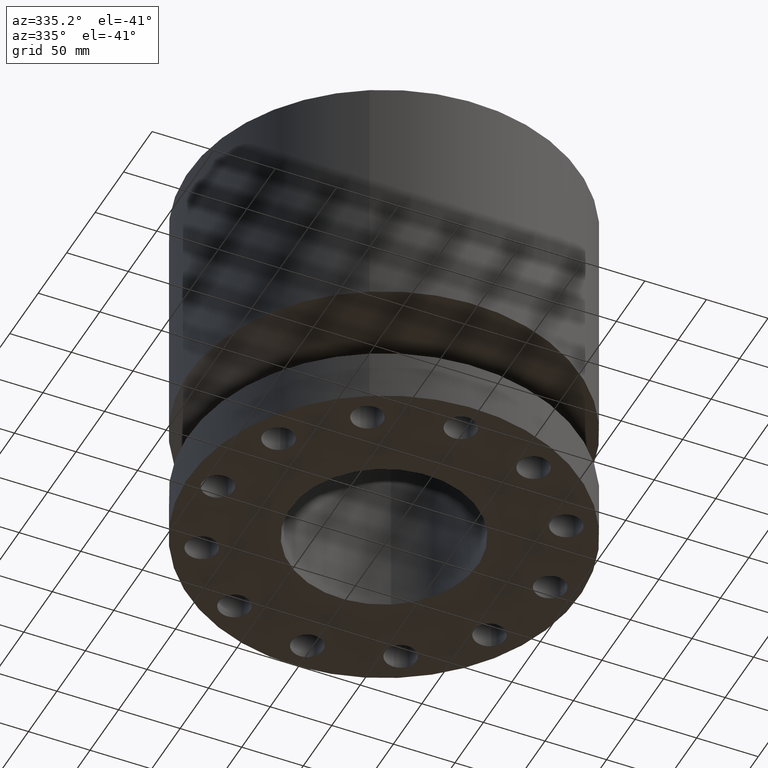
[diagram: clean part render]
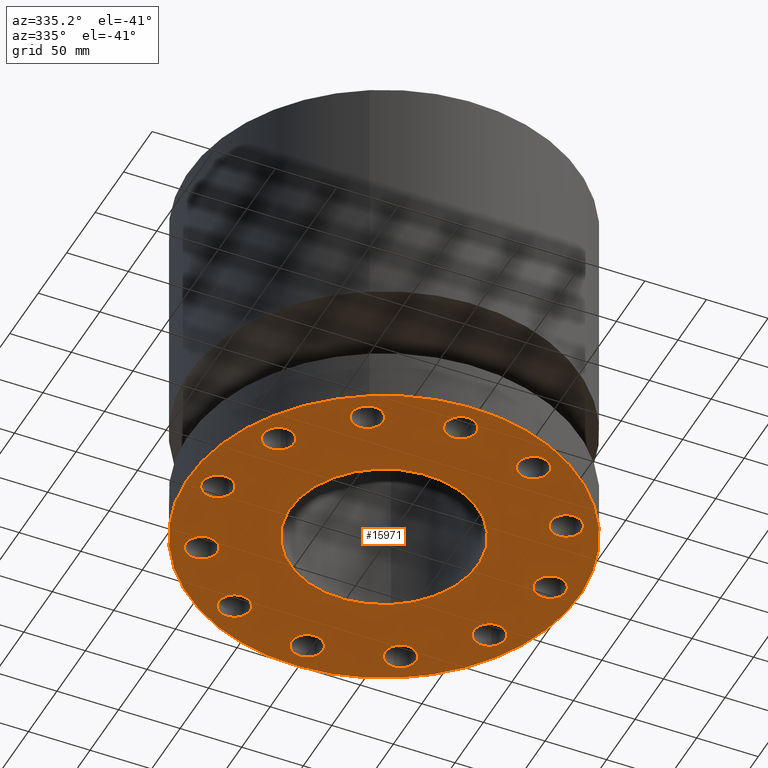
[diagram: same view with one face highlighted and labeled with its STEP entity id]
A machine part, auxiliary view. The second image highlights one B-rep face of the part: STEP entity #15971.
In plain terms, the highlighted planar face has unit normal (0, 0, 1).
Its self-contained STEP definition (entity closure, byte-faithful):
#51=AXIS2_PLACEMENT_3D('Circle Axis2P3D',#49,#50,$) ;
#344=AXIS2_PLACEMENT_3D('Circle Axis2P3D',#342,#343,$) ;
#361=AXIS2_PLACEMENT_3D('Circle Axis2P3D',#359,#360,$) ;
#387=AXIS2_PLACEMENT_3D('Circle Axis2P3D',#385,#386,$) ;
#454=AXIS2_PLACEMENT_3D('Circle Axis2P3D',#452,#453,$) ;
#473=AXIS2_PLACEMENT_3D('Circle Axis2P3D',#471,#472,$) ;
#497=AXIS2_PLACEMENT_3D('Circle Axis2P3D',#495,#496,$) ;
#516=AXIS2_PLACEMENT_3D('Circle Axis2P3D',#514,#515,$) ;
#540=AXIS2_PLACEMENT_3D('Circle Axis2P3D',#538,#539,$) ;
#559=AXIS2_PLACEMENT_3D('Circle Axis2P3D',#557,#558,$) ;
#583=AXIS2_PLACEMENT_3D('Circle Axis2P3D',#581,#582,$) ;
#602=AXIS2_PLACEMENT_3D('Circle Axis2P3D',#600,#601,$) ;
#626=AXIS2_PLACEMENT_3D('Circle Axis2P3D',#624,#625,$) ;
#645=AXIS2_PLACEMENT_3D('Circle Axis2P3D',#643,#644,$) ;
#669=AXIS2_PLACEMENT_3D('Circle Axis2P3D',#667,#668,$) ;
#688=AXIS2_PLACEMENT_3D('Circle Axis2P3D',#686,#687,$) ;
#712=AXIS2_PLACEMENT_3D('Circle Axis2P3D',#710,#711,$) ;
#731=AXIS2_PLACEMENT_3D('Circle Axis2P3D',#729,#730,$) ;
#755=AXIS2_PLACEMENT_3D('Circle Axis2P3D',#753,#754,$) ;
#774=AXIS2_PLACEMENT_3D('Circle Axis2P3D',#772,#773,$) ;
#798=AXIS2_PLACEMENT_3D('Circle Axis2P3D',#796,#797,$) ;
#817=AXIS2_PLACEMENT_3D('Circle Axis2P3D',#815,#816,$) ;
#841=AXIS2_PLACEMENT_3D('Circle Axis2P3D',#839,#840,$) ;
#860=AXIS2_PLACEMENT_3D('Circle Axis2P3D',#858,#859,$) ;
#884=AXIS2_PLACEMENT_3D('Circle Axis2P3D',#882,#883,$) ;
#903=AXIS2_PLACEMENT_3D('Circle Axis2P3D',#901,#902,$) ;
#15874=AXIS2_PLACEMENT_3D('Circle Axis2P3D',#15872,#15873,$) ;
#15900=AXIS2_PLACEMENT_3D('Circle Axis2P3D',#15898,#15899,$) ;
#15913=AXIS2_PLACEMENT_3D('Plane Axis2P3D',#15910,#15911,#15912) ;
#46=CARTESIAN_POINT('Vertex',(5.74879128097,0.239712769303,2.2401153548E-016)) ;
#49=CARTESIAN_POINT('Axis2P3D Location',(5.31000000002,0.,0.)) ;
#53=CARTESIAN_POINT('Vertex',(4.87120871907,-0.239712769303,2.2401153548E-016)) ;
#342=CARTESIAN_POINT('Axis2P3D Location',(5.31000000002,0.,0.)) ;
#359=CARTESIAN_POINT('Axis2P3D Location',(0.,0.,1.1189649382E-015)) ;
#363=CARTESIAN_POINT('Vertex',(-2.99640961629,-5.48489101184,1.1189649382E-015)) ;
#365=CARTESIAN_POINT('Vertex',(2.99640961629,5.48489101184,1.1189649382E-015)) ;
#385=CARTESIAN_POINT('Axis2P3D Location',(0.,0.,1.1189649382E-015)) ;
#449=CARTESIAN_POINT('Vertex',(5.09845567502,-2.66679829266,2.2401153548E-016)) ;
#452=CARTESIAN_POINT('Axis2P3D Location',(4.59859489411,-2.65500000001,0.)) ;
#456=CARTESIAN_POINT('Vertex',(4.0987341132,-2.64320170737,2.2401153548E-016)) ;
#471=CARTESIAN_POINT('Axis2P3D Location',(4.59859489411,-2.65500000001,0.)) ;
#492=CARTESIAN_POINT('Vertex',(3.08199298831,-4.85874290572,2.2401153548E-016)) ;
#495=CARTESIAN_POINT('Axis2P3D Location',(2.65500000001,-4.59859489411,0.)) ;
#499=CARTESIAN_POINT('Vertex',(2.22800701171,-4.33844688251,2.2401153548E-016)) ;
#514=CARTESIAN_POINT('Axis2P3D Location',(2.65500000001,-4.59859489411,0.)) ;
#535=CARTESIAN_POINT('Vertex',(0.239712769303,-5.74879128097,2.2401153548E-016)) ;
#538=CARTESIAN_POINT('Axis2P3D Location',(-7.9382121303E-016,-5.31000000002,0.)) ;
#542=CARTESIAN_POINT('Vertex',(-0.239712769303,-4.87120871907,2.2401153548E-016)) ;
#557=CARTESIAN_POINT('Axis2P3D Location',(-7.9382121303E-016,-5.31000000002,0.)) ;
#578=CARTESIAN_POINT('Vertex',(-2.66679829266,-5.09845567502,2.22372426684E-016)) ;
#581=CARTESIAN_POINT('Axis2P3D Location',(-2.65500000001,-4.59859489411,-3.2782175924E-018)) ;
#585=CARTESIAN_POINT('Vertex',(-2.64320170737,-4.0987341132,2.22372426684E-016)) ;
#600=CARTESIAN_POINT('Axis2P3D Location',(-2.65500000001,-4.59859489411,-3.2782175924E-018)) ;
#621=CARTESIAN_POINT('Vertex',(-4.85874290572,-3.08199298831,2.2401153548E-016)) ;
#624=CARTESIAN_POINT('Axis2P3D Location',(-4.59859489411,-2.65500000001,0.)) ;
#628=CARTESIAN_POINT('Vertex',(-4.33844688251,-2.22800701171,2.2401153548E-016)) ;
#643=CARTESIAN_POINT('Axis2P3D Location',(-4.59859489411,-2.65500000001,0.)) ;
#664=CARTESIAN_POINT('Vertex',(-5.74879128097,-0.239712769303,2.2401153548E-016)) ;
#667=CARTESIAN_POINT('Axis2P3D Location',(-5.31000000002,-6.5028745035E-016,0.)) ;
#671=CARTESIAN_POINT('Vertex',(-4.87120871907,0.239712769303,2.2401153548E-016)) ;
#686=CARTESIAN_POINT('Axis2P3D Location',(-5.31000000002,-6.5028745035E-016,0.)) ;
#707=CARTESIAN_POINT('Vertex',(-5.09845567502,2.66679829266,2.2401153548E-016)) ;
#710=CARTESIAN_POINT('Axis2P3D Location',(-4.59859489411,2.65500000001,0.)) ;
#714=CARTESIAN_POINT('Vertex',(-4.0987341132,2.64320170737,2.2401153548E-016)) ;
#729=CARTESIAN_POINT('Axis2P3D Location',(-4.59859489411,2.65500000001,0.)) ;
#750=CARTESIAN_POINT('Vertex',(-3.08199298831,4.85874290572,2.2401153548E-016)) ;
#753=CARTESIAN_POINT('Axis2P3D Location',(-2.65500000001,4.59859489411,0.)) ;
#757=CARTESIAN_POINT('Vertex',(-2.22800701171,4.33844688251,2.2401153548E-016)) ;
#772=CARTESIAN_POINT('Axis2P3D Location',(-2.65500000001,4.59859489411,0.)) ;
#793=CARTESIAN_POINT('Vertex',(-0.239712769303,5.74879128097,2.2401153548E-016)) ;
#796=CARTESIAN_POINT('Axis2P3D Location',(-9.75431175525E-016,5.31000000002,0.)) ;
#800=CARTESIAN_POINT('Vertex',(0.239712769303,4.87120871907,2.2401153548E-016)) ;
#815=CARTESIAN_POINT('Axis2P3D Location',(-9.75431175525E-016,5.31000000002,0.)) ;
#836=CARTESIAN_POINT('Vertex',(2.66679829266,5.09845567502,2.2401153548E-016)) ;
#839=CARTESIAN_POINT('Axis2P3D Location',(2.65500000001,4.59859489411,0.)) ;
#843=CARTESIAN_POINT('Vertex',(2.64320170737,4.0987341132,2.2401153548E-016)) ;
#858=CARTESIAN_POINT('Axis2P3D Location',(2.65500000001,4.59859489411,0.)) ;
#879=CARTESIAN_POINT('Vertex',(4.85874290572,3.08199298831,2.2401153548E-016)) ;
#882=CARTESIAN_POINT('Axis2P3D Location',(4.59859489411,2.65500000001,0.)) ;
#886=CARTESIAN_POINT('Vertex',(4.33844688251,2.22800701171,2.2401153548E-016)) ;
#901=CARTESIAN_POINT('Axis2P3D Location',(4.59859489411,2.65500000001,0.)) ;
#15872=CARTESIAN_POINT('Axis2P3D Location',(0.,0.,0.)) ;
#15876=CARTESIAN_POINT('Vertex',(-1.43827661582,-2.63274768568,0.)) ;
#15878=CARTESIAN_POINT('Vertex',(1.43827661582,2.63274768568,0.)) ;
#15898=CARTESIAN_POINT('Axis2P3D Location',(0.,0.,0.)) ;
#15910=CARTESIAN_POINT('Axis2P3D Location',(0.,0.,0.)) ;
#50=DIRECTION('Axis2P3D Direction',(0.,-0.,0.0393700787402)) ;
#343=DIRECTION('Axis2P3D Direction',(0.,-0.,0.0393700787402)) ;
#360=DIRECTION('Axis2P3D Direction',(0.,0.,-0.0393700787402)) ;
#386=DIRECTION('Axis2P3D Direction',(0.,0.,-0.0393700787402)) ;
#453=DIRECTION('Axis2P3D Direction',(-0.,0.,0.0393700787402)) ;
#472=DIRECTION('Axis2P3D Direction',(-0.,0.,0.0393700787402)) ;
#496=DIRECTION('Axis2P3D Direction',(-0.,0.,0.0393700787402)) ;
#515=DIRECTION('Axis2P3D Direction',(-0.,0.,0.0393700787402)) ;
#539=DIRECTION('Axis2P3D Direction',(-0.,0.,0.0393700787402)) ;
#558=DIRECTION('Axis2P3D Direction',(-0.,0.,0.0393700787402)) ;
#582=DIRECTION('Axis2P3D Direction',(0.,0.,0.0393700787402)) ;
#601=DIRECTION('Axis2P3D Direction',(0.,0.,0.0393700787402)) ;
#625=DIRECTION('Axis2P3D Direction',(0.,0.,0.0393700787402)) ;
#644=DIRECTION('Axis2P3D Direction',(0.,0.,0.0393700787402)) ;
#668=DIRECTION('Axis2P3D Direction',(0.,0.,0.0393700787402)) ;
#687=DIRECTION('Axis2P3D Direction',(0.,0.,0.0393700787402)) ;
#711=DIRECTION('Axis2P3D Direction',(0.,0.,0.0393700787402)) ;
#730=DIRECTION('Axis2P3D Direction',(0.,0.,0.0393700787402)) ;
#754=DIRECTION('Axis2P3D Direction',(0.,0.,0.0393700787402)) ;
#773=DIRECTION('Axis2P3D Direction',(0.,0.,0.0393700787402)) ;
#797=DIRECTION('Axis2P3D Direction',(0.,0.,0.0393700787402)) ;
#816=DIRECTION('Axis2P3D Direction',(0.,0.,0.0393700787402)) ;
#840=DIRECTION('Axis2P3D Direction',(0.,-0.,0.0393700787402)) ;
#859=DIRECTION('Axis2P3D Direction',(0.,-0.,0.0393700787402)) ;
#883=DIRECTION('Axis2P3D Direction',(0.,-0.,0.0393700787402)) ;
#902=DIRECTION('Axis2P3D Direction',(0.,-0.,0.0393700787402)) ;
#15873=DIRECTION('Axis2P3D Direction',(0.,0.,-0.0393700787402)) ;
#15899=DIRECTION('Axis2P3D Direction',(0.,0.,-0.0393700787402)) ;
#15911=DIRECTION('Axis2P3D Direction',(0.,0.,0.0393700787402)) ;
#15912=DIRECTION('Axis2P3D XDirection',(0.0393700787402,0.,0.)) ;
#15916=ORIENTED_EDGE('',*,*,#389,.T.) ;
#15917=ORIENTED_EDGE('',*,*,#367,.T.) ;
#15920=ORIENTED_EDGE('',*,*,#888,.F.) ;
#15921=ORIENTED_EDGE('',*,*,#905,.F.) ;
#15924=ORIENTED_EDGE('',*,*,#845,.F.) ;
#15925=ORIENTED_EDGE('',*,*,#862,.F.) ;
#15928=ORIENTED_EDGE('',*,*,#802,.F.) ;
#15929=ORIENTED_EDGE('',*,*,#819,.F.) ;
#15932=ORIENTED_EDGE('',*,*,#759,.F.) ;
#15933=ORIENTED_EDGE('',*,*,#776,.F.) ;
#15936=ORIENTED_EDGE('',*,*,#716,.F.) ;
#15937=ORIENTED_EDGE('',*,*,#733,.F.) ;
#15940=ORIENTED_EDGE('',*,*,#673,.F.) ;
#15941=ORIENTED_EDGE('',*,*,#690,.F.) ;
#15944=ORIENTED_EDGE('',*,*,#630,.F.) ;
#15945=ORIENTED_EDGE('',*,*,#647,.F.) ;
#15948=ORIENTED_EDGE('',*,*,#587,.F.) ;
#15949=ORIENTED_EDGE('',*,*,#604,.F.) ;
#15952=ORIENTED_EDGE('',*,*,#544,.F.) ;
#15953=ORIENTED_EDGE('',*,*,#561,.F.) ;
#15956=ORIENTED_EDGE('',*,*,#501,.F.) ;
#15957=ORIENTED_EDGE('',*,*,#518,.F.) ;
#15960=ORIENTED_EDGE('',*,*,#458,.F.) ;
#15961=ORIENTED_EDGE('',*,*,#475,.F.) ;
#15964=ORIENTED_EDGE('',*,*,#346,.F.) ;
#15965=ORIENTED_EDGE('',*,*,#55,.F.) ;
#15968=ORIENTED_EDGE('',*,*,#15902,.T.) ;
#15969=ORIENTED_EDGE('',*,*,#15880,.T.) ;
#15922=FACE_BOUND('',#15919,.T.) ;
#15926=FACE_BOUND('',#15923,.T.) ;
#15930=FACE_BOUND('',#15927,.T.) ;
#15934=FACE_BOUND('',#15931,.T.) ;
#15938=FACE_BOUND('',#15935,.T.) ;
#15942=FACE_BOUND('',#15939,.T.) ;
#15946=FACE_BOUND('',#15943,.T.) ;
#15950=FACE_BOUND('',#15947,.T.) ;
#15954=FACE_BOUND('',#15951,.T.) ;
#15958=FACE_BOUND('',#15955,.T.) ;
#15962=FACE_BOUND('',#15959,.T.) ;
#15966=FACE_BOUND('',#15963,.T.) ;
#15970=FACE_BOUND('',#15967,.T.) ;
#15971=ADVANCED_FACE('PartBody',(#15918,#15922,#15926,#15930,#15934,#15938,#15942,#15946,#15950,#15954,#15958,#15962,#15966,#15970),#15914,.F.) ;
#52=CIRCLE('generated circle',#51,0.500000000002) ;
#345=CIRCLE('generated circle',#344,0.500000000002) ;
#362=CIRCLE('generated circle',#361,6.25000000003) ;
#388=CIRCLE('generated circle',#387,6.25000000003) ;
#455=CIRCLE('generated circle',#454,0.500000000002) ;
#474=CIRCLE('generated circle',#473,0.500000000002) ;
#498=CIRCLE('generated circle',#497,0.500000000002) ;
#517=CIRCLE('generated circle',#516,0.500000000002) ;
#541=CIRCLE('generated circle',#540,0.500000000002) ;
#560=CIRCLE('generated circle',#559,0.500000000002) ;
#584=CIRCLE('generated circle',#583,0.500000000002) ;
#603=CIRCLE('generated circle',#602,0.500000000002) ;
#627=CIRCLE('generated circle',#626,0.500000000002) ;
#646=CIRCLE('generated circle',#645,0.500000000002) ;
#670=CIRCLE('generated circle',#669,0.500000000002) ;
#689=CIRCLE('generated circle',#688,0.500000000002) ;
#713=CIRCLE('generated circle',#712,0.500000000002) ;
#732=CIRCLE('generated circle',#731,0.500000000002) ;
#756=CIRCLE('generated circle',#755,0.500000000002) ;
#775=CIRCLE('generated circle',#774,0.500000000002) ;
#799=CIRCLE('generated circle',#798,0.500000000002) ;
#818=CIRCLE('generated circle',#817,0.500000000002) ;
#842=CIRCLE('generated circle',#841,0.500000000002) ;
#861=CIRCLE('generated circle',#860,0.500000000002) ;
#885=CIRCLE('generated circle',#884,0.500000000002) ;
#904=CIRCLE('generated circle',#903,0.500000000002) ;
#15875=CIRCLE('generated circle',#15874,3.00000000001) ;
#15901=CIRCLE('generated circle',#15900,3.00000000001) ;
#55=EDGE_CURVE('',#47,#54,#52,.F.) ;
#346=EDGE_CURVE('',#54,#47,#345,.F.) ;
#367=EDGE_CURVE('',#364,#366,#362,.T.) ;
#389=EDGE_CURVE('',#366,#364,#388,.T.) ;
#458=EDGE_CURVE('',#450,#457,#455,.F.) ;
#475=EDGE_CURVE('',#457,#450,#474,.F.) ;
#501=EDGE_CURVE('',#493,#500,#498,.F.) ;
#518=EDGE_CURVE('',#500,#493,#517,.F.) ;
#544=EDGE_CURVE('',#536,#543,#541,.F.) ;
#561=EDGE_CURVE('',#543,#536,#560,.F.) ;
#587=EDGE_CURVE('',#579,#586,#584,.F.) ;
#604=EDGE_CURVE('',#586,#579,#603,.F.) ;
#630=EDGE_CURVE('',#622,#629,#627,.F.) ;
#647=EDGE_CURVE('',#629,#622,#646,.F.) ;
#673=EDGE_CURVE('',#665,#672,#670,.F.) ;
#690=EDGE_CURVE('',#672,#665,#689,.F.) ;
#716=EDGE_CURVE('',#708,#715,#713,.F.) ;
#733=EDGE_CURVE('',#715,#708,#732,.F.) ;
#759=EDGE_CURVE('',#751,#758,#756,.F.) ;
#776=EDGE_CURVE('',#758,#751,#775,.F.) ;
#802=EDGE_CURVE('',#794,#801,#799,.F.) ;
#819=EDGE_CURVE('',#801,#794,#818,.F.) ;
#845=EDGE_CURVE('',#837,#844,#842,.F.) ;
#862=EDGE_CURVE('',#844,#837,#861,.F.) ;
#888=EDGE_CURVE('',#880,#887,#885,.F.) ;
#905=EDGE_CURVE('',#887,#880,#904,.F.) ;
#15880=EDGE_CURVE('',#15877,#15879,#15875,.F.) ;
#15902=EDGE_CURVE('',#15879,#15877,#15901,.F.) ;
#15915=EDGE_LOOP('',(#15916,#15917)) ;
#15919=EDGE_LOOP('',(#15920,#15921)) ;
#15923=EDGE_LOOP('',(#15924,#15925)) ;
#15927=EDGE_LOOP('',(#15928,#15929)) ;
#15931=EDGE_LOOP('',(#15932,#15933)) ;
#15935=EDGE_LOOP('',(#15936,#15937)) ;
#15939=EDGE_LOOP('',(#15940,#15941)) ;
#15943=EDGE_LOOP('',(#15944,#15945)) ;
#15947=EDGE_LOOP('',(#15948,#15949)) ;
#15951=EDGE_LOOP('',(#15952,#15953)) ;
#15955=EDGE_LOOP('',(#15956,#15957)) ;
#15959=EDGE_LOOP('',(#15960,#15961)) ;
#15963=EDGE_LOOP('',(#15964,#15965)) ;
#15967=EDGE_LOOP('',(#15968,#15969)) ;
#15918=FACE_OUTER_BOUND('',#15915,.T.) ;
#15914=PLANE('',#15913) ;
#47=VERTEX_POINT('',#46) ;
#54=VERTEX_POINT('',#53) ;
#364=VERTEX_POINT('',#363) ;
#366=VERTEX_POINT('',#365) ;
#450=VERTEX_POINT('',#449) ;
#457=VERTEX_POINT('',#456) ;
#493=VERTEX_POINT('',#492) ;
#500=VERTEX_POINT('',#499) ;
#536=VERTEX_POINT('',#535) ;
#543=VERTEX_POINT('',#542) ;
#579=VERTEX_POINT('',#578) ;
#586=VERTEX_POINT('',#585) ;
#622=VERTEX_POINT('',#621) ;
#629=VERTEX_POINT('',#628) ;
#665=VERTEX_POINT('',#664) ;
#672=VERTEX_POINT('',#671) ;
#708=VERTEX_POINT('',#707) ;
#715=VERTEX_POINT('',#714) ;
#751=VERTEX_POINT('',#750) ;
#758=VERTEX_POINT('',#757) ;
#794=VERTEX_POINT('',#793) ;
#801=VERTEX_POINT('',#800) ;
#837=VERTEX_POINT('',#836) ;
#844=VERTEX_POINT('',#843) ;
#880=VERTEX_POINT('',#879) ;
#887=VERTEX_POINT('',#886) ;
#15877=VERTEX_POINT('',#15876) ;
#15879=VERTEX_POINT('',#15878) ;